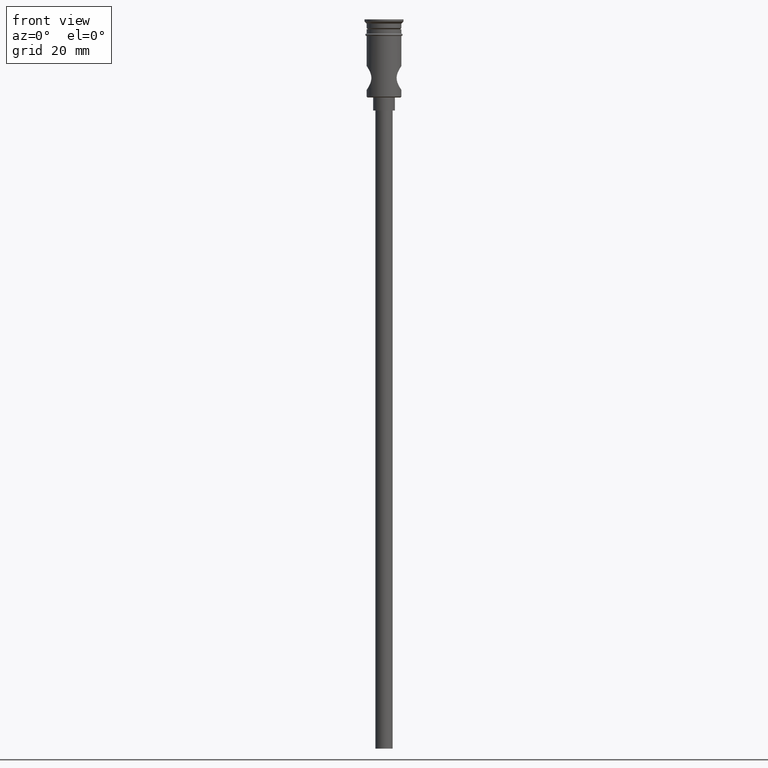
[diagram: clean part render]
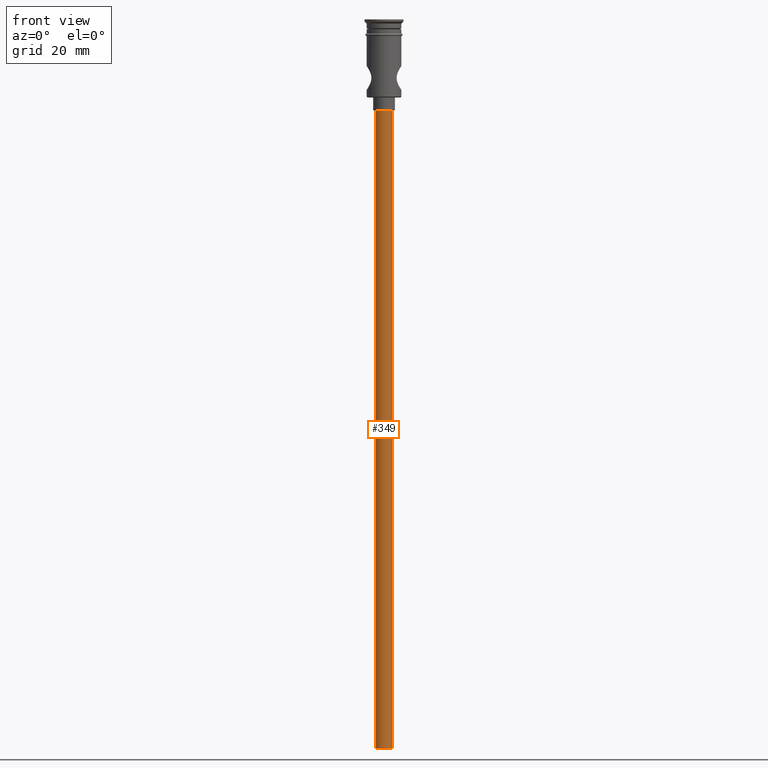
[diagram: same view with one face highlighted and labeled with its STEP entity id]
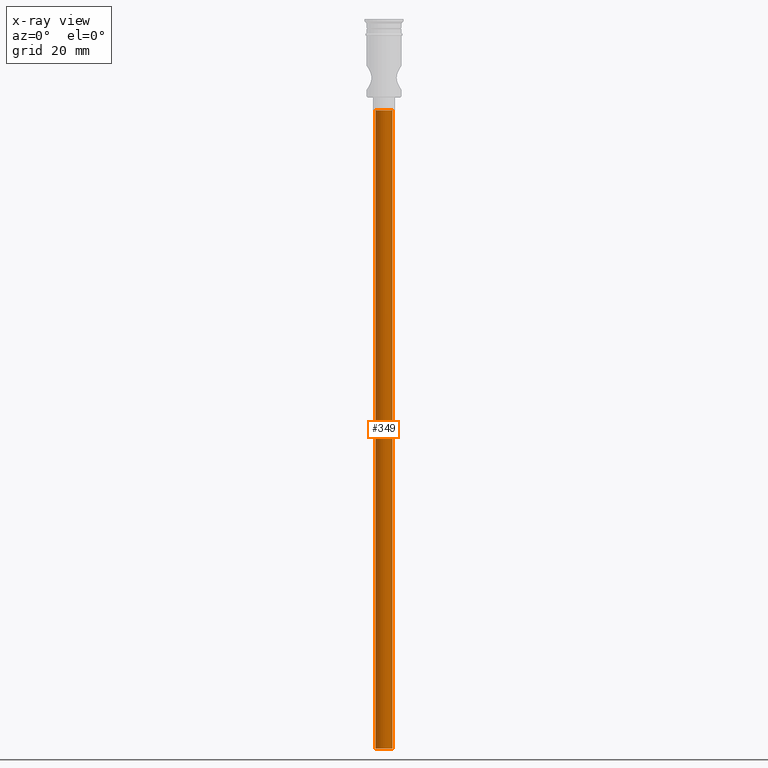
[diagram: x-ray of the same camera — body ghosted, the highlighted face saturated]
A machine part, front view. The second image highlights one B-rep face of the part: STEP entity #349.
The next image is the same camera in x-ray: the body ghosted, the highlighted face saturated — about 0% of this face is hidden behind the body in this view.
In plain terms, the highlighted cylindrical surface (edge-blend (fillet) strip) has radius 2 mm, axis along (-0, -0, 1).
Its self-contained STEP definition (entity closure, byte-faithful):
#84 = ORIENTED_EDGE ( 'NONE', *, *, #339, .F. ) ;
#174 = FACE_OUTER_BOUND ( 'NONE', #637, .T. ) ;
#217 = ORIENTED_EDGE ( 'NONE', *, *, #556, .T. ) ;
#316 = CARTESIAN_POINT ( 'NONE',  ( 0.000000000000000000, 0.000000000000000000, -167.9999999999999716 ) ) ;
#339 = EDGE_CURVE ( 'NONE', #1396, #580, #420, .T. ) ;
#349 = ADVANCED_FACE ( 'NONE', ( #174 ), #708, .T. ) ;
#374 = EDGE_CURVE ( 'NONE', #580, #1074, #406, .T. ) ;
#397 = AXIS2_PLACEMENT_3D ( 'NONE', #316, #785, #676 ) ;
#406 = LINE ( 'NONE', #786, #1182 ) ;
#420 = CIRCLE ( 'NONE', #397, 2.000000000000000000 ) ;
#476 = LINE ( 'NONE', #1231, #876 ) ;
#477 = VERTEX_POINT ( 'NONE', #510 ) ;
#510 = CARTESIAN_POINT ( 'NONE',  ( 2.000000000000000000, 0.000000000000000000, -20.99999999999999645 ) ) ;
#548 = ORIENTED_EDGE ( 'NONE', *, *, #663, .T. ) ;
#556 = EDGE_CURVE ( 'NONE', #477, #1074, #1315, .T. ) ;
#579 = DIRECTION ( 'NONE',  ( -0.000000000000000000, -0.000000000000000000, 1.000000000000000000 ) ) ;
#580 = VERTEX_POINT ( 'NONE', #1308 ) ;
#600 = CARTESIAN_POINT ( 'NONE',  ( 0.000000000000000000, 0.000000000000000000, -167.9999999999999716 ) ) ;
#637 = EDGE_LOOP ( 'NONE', ( #820, #84, #548, #217 ) ) ;
#638 = DIRECTION ( 'NONE',  ( -1.000000000000000000, 0.000000000000000000, 0.000000000000000000 ) ) ;
#663 = EDGE_CURVE ( 'NONE', #1396, #477, #476, .T. ) ;
#676 = DIRECTION ( 'NONE',  ( -1.000000000000000000, 0.000000000000000000, 0.000000000000000000 ) ) ;
#708 = CYLINDRICAL_SURFACE ( 'NONE', #1226, 2.000000000000000000 ) ;
#743 = CARTESIAN_POINT ( 'NONE',  ( 2.000000000000000000, 0.000000000000000000, -167.9999999999999716 ) ) ;
#785 = DIRECTION ( 'NONE',  ( 0.000000000000000000, 0.000000000000000000, -1.000000000000000000 ) ) ;
#786 = CARTESIAN_POINT ( 'NONE',  ( -2.000000000000000000, 2.449293598294706414E-16, -167.9999999999999716 ) ) ;
#806 = AXIS2_PLACEMENT_3D ( 'NONE', #1393, #1067, #638 ) ;
#820 = ORIENTED_EDGE ( 'NONE', *, *, #374, .F. ) ;
#876 = VECTOR ( 'NONE', #1218, 1000.000000000000000 ) ;
#1022 = DIRECTION ( 'NONE',  ( -0.000000000000000000, -0.000000000000000000, 1.000000000000000000 ) ) ;
#1067 = DIRECTION ( 'NONE',  ( 0.000000000000000000, 0.000000000000000000, -1.000000000000000000 ) ) ;
#1074 = VERTEX_POINT ( 'NONE', #1112 ) ;
#1112 = CARTESIAN_POINT ( 'NONE',  ( -2.000000000000000000, 2.449293598294706414E-16, -20.99999999999999645 ) ) ;
#1138 = DIRECTION ( 'NONE',  ( 1.000000000000000000, 0.000000000000000000, 0.000000000000000000 ) ) ;
#1182 = VECTOR ( 'NONE', #579, 1000.000000000000000 ) ;
#1218 = DIRECTION ( 'NONE',  ( -0.000000000000000000, -0.000000000000000000, 1.000000000000000000 ) ) ;
#1226 = AXIS2_PLACEMENT_3D ( 'NONE', #600, #1022, #1138 ) ;
#1231 = CARTESIAN_POINT ( 'NONE',  ( 2.000000000000000000, 0.000000000000000000, -167.9999999999999716 ) ) ;
#1308 = CARTESIAN_POINT ( 'NONE',  ( -2.000000000000000000, 2.449293598294706414E-16, -167.9999999999999716 ) ) ;
#1315 = CIRCLE ( 'NONE', #806, 2.000000000000000000 ) ;
#1393 = CARTESIAN_POINT ( 'NONE',  ( 0.000000000000000000, 0.000000000000000000, -20.99999999999999645 ) ) ;
#1396 = VERTEX_POINT ( 'NONE', #743 ) ;